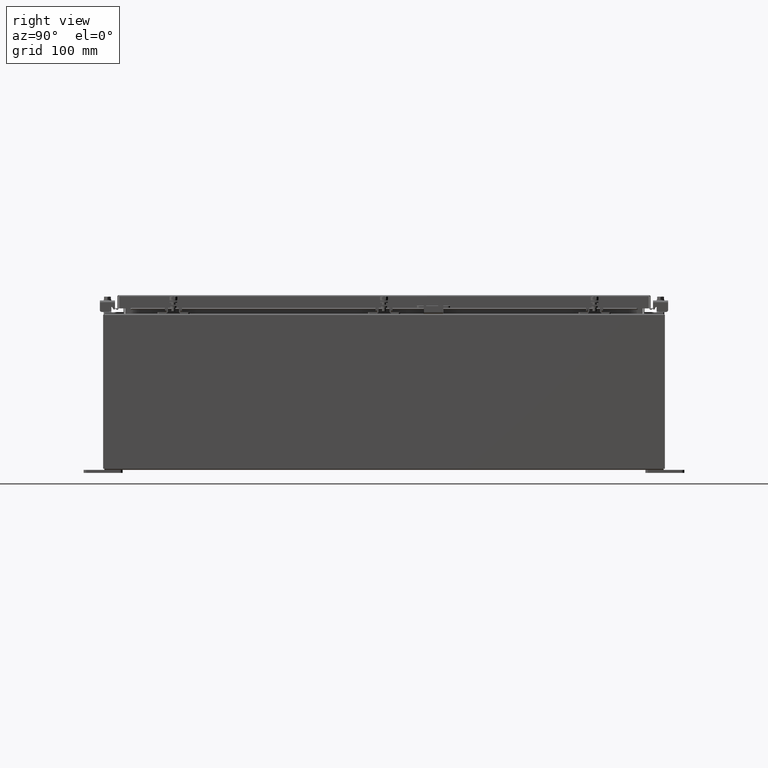
[diagram: clean part render]
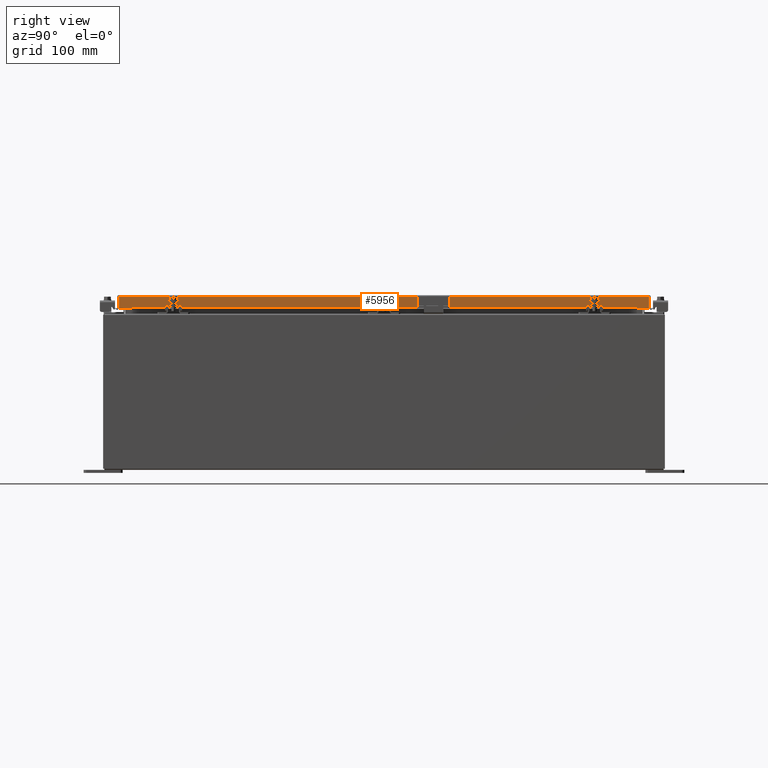
[diagram: same view with one face highlighted and labeled with its STEP entity id]
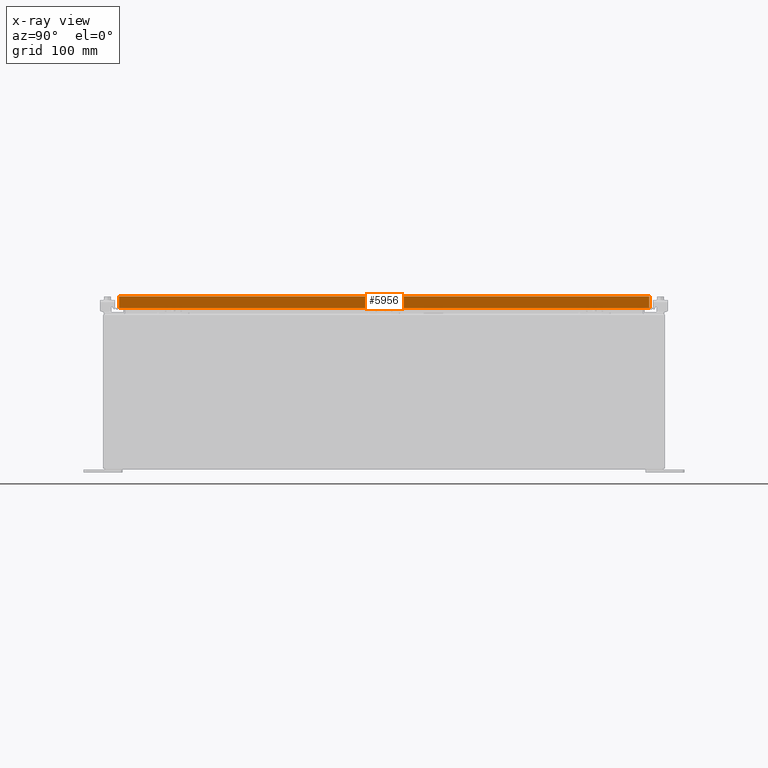
[diagram: x-ray of the same camera — body ghosted, the highlighted face saturated]
A machine part, right view. The second image highlights one B-rep face of the part: STEP entity #5956.
The next image is the same camera in x-ray: the body ghosted, the highlighted face saturated — about 0% of this face is hidden behind the body in this view.
In plain terms, the highlighted planar face has unit normal (1, 0, 0).
Its self-contained STEP definition (entity closure, byte-faithful):
#1087 = VERTEX_POINT ( 'NONE', #17447 ) ;
#1863 = ORIENTED_EDGE ( 'NONE', *, *, #20277, .T. ) ;
#3603 = CARTESIAN_POINT ( 'NONE',  ( 11.07799999999998900, -16.25515786437626200, -0.8500000000000020900 ) ) ;
#3613 = EDGE_CURVE ( 'NONE', #12547, #27441, #39702, .T. ) ;
#3926 = CARTESIAN_POINT ( 'NONE',  ( 11.07799999999999600, -17.00515786437626500, -0.08770000000000026400 ) ) ;
#3951 = LINE ( 'NONE', #12964, #11667 ) ;
#3966 = VECTOR ( 'NONE', #35128, 39.37007874015748100 ) ;
#4048 = VERTEX_POINT ( 'NONE', #3603 ) ;
#5541 = CARTESIAN_POINT ( 'NONE',  ( 11.07799999999999600, 17.00515786437627600, 1.507980092502673200E-013 ) ) ;
#5956 = ADVANCED_FACE ( 'NONE', ( #21019 ), #14254, .T. ) ;
#7644 = CARTESIAN_POINT ( 'NONE',  ( 11.07799999999999600, 0.0000000000000000000, 3.059669752903974500E-014 ) ) ;
#8013 = VERTEX_POINT ( 'NONE', #3926 ) ;
#8312 = ORIENTED_EDGE ( 'NONE', *, *, #24988, .F. ) ;
#9215 = ORIENTED_EDGE ( 'NONE', *, *, #29238, .T. ) ;
#9398 = CARTESIAN_POINT ( 'NONE',  ( 11.07799999999999800, -17.09399999999999800, -0.8499999999999999800 ) ) ;
#10634 = LINE ( 'NONE', #9398, #35841 ) ;
#11667 = VECTOR ( 'NONE', #39251, 39.37007874015748100 ) ;
#12547 = VERTEX_POINT ( 'NONE', #24932 ) ;
#12726 = LINE ( 'NONE', #5541, #3966 ) ;
#12964 = CARTESIAN_POINT ( 'NONE',  ( 11.07799999999998900, 16.25515786437628300, -0.8500000000000020900 ) ) ;
#14254 = PLANE ( 'NONE',  #22470 ) ;
#17447 = CARTESIAN_POINT ( 'NONE',  ( 11.07799999999999800, -17.00515786437626200, -0.8499999999999999800 ) ) ;
#17546 = DIRECTION ( 'NONE',  ( 2.818880942772360100E-015, 0.0000000000000000000, -1.000000000000000000 ) ) ;
#17715 = CARTESIAN_POINT ( 'NONE',  ( 11.07799999999999800, -17.09399999999999800, -0.8499999999999999800 ) ) ;
#18122 = LINE ( 'NONE', #29784, #34576 ) ;
#18241 = CARTESIAN_POINT ( 'NONE',  ( 11.07799999999999600, 17.00515786437627600, -0.08770000000000026400 ) ) ;
#19541 = ORIENTED_EDGE ( 'NONE', *, *, #20354, .F. ) ;
#20277 = EDGE_CURVE ( 'NONE', #12547, #42050, #12726, .T. ) ;
#20354 = EDGE_CURVE ( 'NONE', #4048, #1087, #10634, .T. ) ;
#21019 = FACE_OUTER_BOUND ( 'NONE', #26786, .T. ) ;
#22275 = CARTESIAN_POINT ( 'NONE',  ( 11.07799999999999600, 0.0000000000000000000, -0.08770000000000026400 ) ) ;
#22470 = AXIS2_PLACEMENT_3D ( 'NONE', #7644, #37216, #17546 ) ;
#22874 = LINE ( 'NONE', #22275, #39355 ) ;
#24029 = EDGE_CURVE ( 'NONE', #1087, #8013, #18122, .T. ) ;
#24932 = CARTESIAN_POINT ( 'NONE',  ( 11.07799999999999800, 17.00515786437628000, -0.8499999999999999800 ) ) ;
#24988 = EDGE_CURVE ( 'NONE', #27441, #4048, #3951, .T. ) ;
#25741 = DIRECTION ( 'NONE',  ( 0.0000000000000000000, -1.000000000000000000, 0.0000000000000000000 ) ) ;
#26786 = EDGE_LOOP ( 'NONE', ( #41363, #19541, #8312, #27159, #1863, #9215 ) ) ;
#27159 = ORIENTED_EDGE ( 'NONE', *, *, #3613, .F. ) ;
#27190 = CARTESIAN_POINT ( 'NONE',  ( 11.07799999999998900, 16.25515786437628000, -0.8500000000000020900 ) ) ;
#27441 = VERTEX_POINT ( 'NONE', #27190 ) ;
#27619 = DIRECTION ( 'NONE',  ( 0.0000000000000000000, -1.000000000000000000, 0.0000000000000000000 ) ) ;
#29238 = EDGE_CURVE ( 'NONE', #42050, #8013, #22874, .T. ) ;
#29784 = CARTESIAN_POINT ( 'NONE',  ( 11.07799999999999600, -17.00515786437626500, -0.07470000000000015500 ) ) ;
#30942 = VECTOR ( 'NONE', #27619, 39.37007874015748100 ) ;
#34576 = VECTOR ( 'NONE', #39566, 39.37007874015748100 ) ;
#35128 = DIRECTION ( 'NONE',  ( -2.818880942772360500E-015, -6.982962677686269100E-015, 1.000000000000000000 ) ) ;
#35841 = VECTOR ( 'NONE', #25741, 39.37007874015748100 ) ;
#37216 = DIRECTION ( 'NONE',  ( 1.000000000000000000, 0.0000000000000000000, 2.818880942772360100E-015 ) ) ;
#38647 = DIRECTION ( 'NONE',  ( 0.0000000000000000000, -1.000000000000000000, 0.0000000000000000000 ) ) ;
#39251 = DIRECTION ( 'NONE',  ( 0.0000000000000000000, -1.000000000000000000, 0.0000000000000000000 ) ) ;
#39355 = VECTOR ( 'NONE', #38647, 39.37007874015748100 ) ;
#39566 = DIRECTION ( 'NONE',  ( -2.818880942772360500E-015, -6.982962677686269100E-015, 1.000000000000000000 ) ) ;
#39702 = LINE ( 'NONE', #17715, #30942 ) ;
#41363 = ORIENTED_EDGE ( 'NONE', *, *, #24029, .F. ) ;
#42050 = VERTEX_POINT ( 'NONE', #18241 ) ;